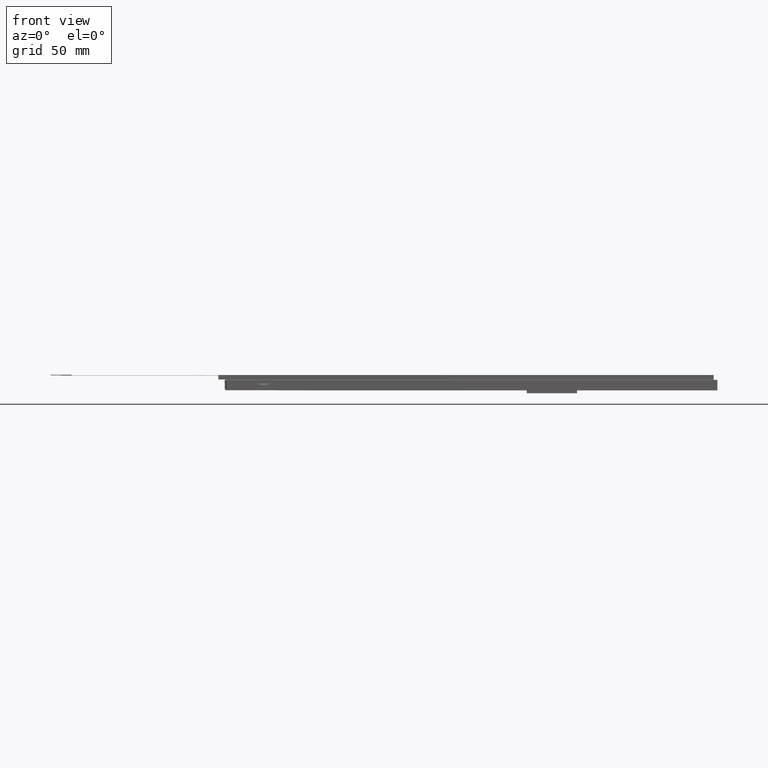
[diagram: clean part render]
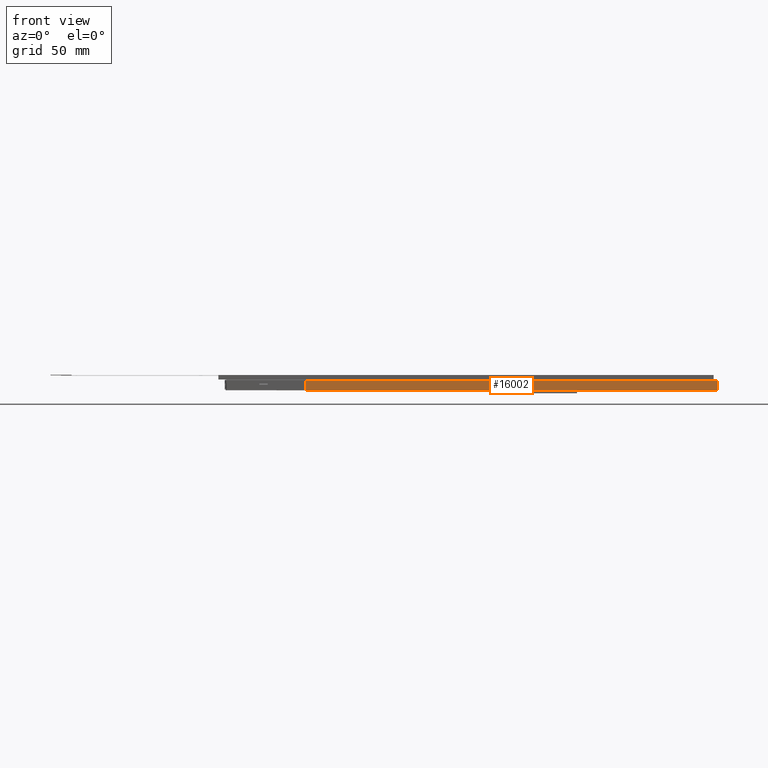
[diagram: same view with one face highlighted and labeled with its STEP entity id]
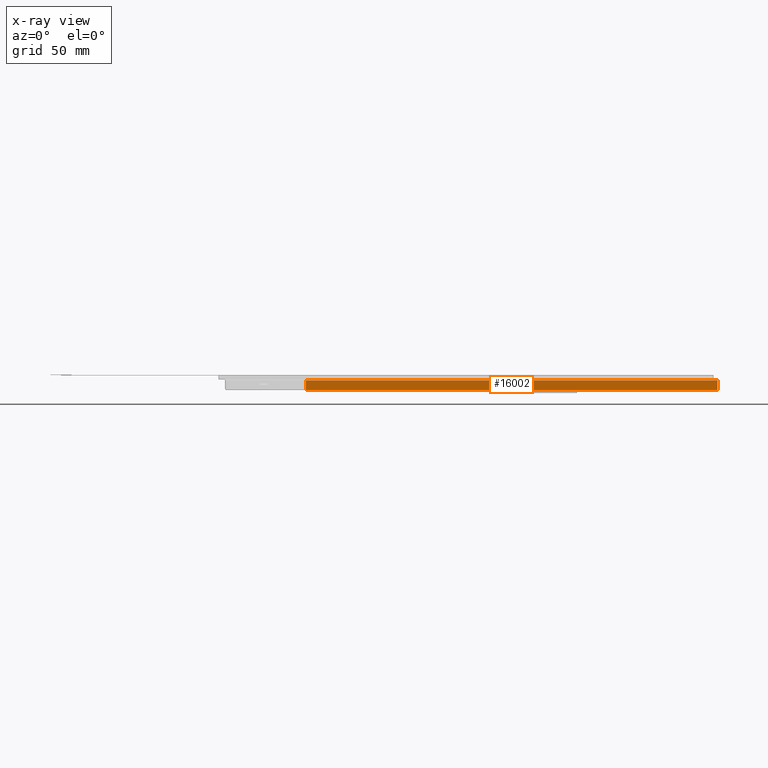
[diagram: x-ray of the same camera — body ghosted, the highlighted face saturated]
A machine part, front view. The second image highlights one B-rep face of the part: STEP entity #16002.
The next image is the same camera in x-ray: the body ghosted, the highlighted face saturated — about 0% of this face is hidden behind the body in this view.
In plain terms, the highlighted planar face has unit normal (0, -1, 0).
Its self-contained STEP definition (entity closure, byte-faithful):
#745=FACE_OUTER_BOUND('',#1635,.T.);
#1635=EDGE_LOOP('',(#11823,#11824,#11825,#11826));
#2906=LINE('',#23794,#5001);
#2914=LINE('',#23811,#5009);
#2918=LINE('',#23818,#5013);
#2923=LINE('',#23828,#5018);
#5001=VECTOR('',#19064,10.);
#5009=VECTOR('',#19078,10.);
#5013=VECTOR('',#19088,10.);
#5018=VECTOR('',#19095,10.);
#6966=VERTEX_POINT('',#23791);
#6967=VERTEX_POINT('',#23793);
#6972=VERTEX_POINT('',#23808);
#6973=VERTEX_POINT('',#23810);
#8752=EDGE_CURVE('',#6967,#6966,#2906,.T.);
#8762=EDGE_CURVE('',#6972,#6973,#2914,.T.);
#8766=EDGE_CURVE('',#6967,#6972,#2918,.T.);
#8771=EDGE_CURVE('',#6966,#6973,#2923,.T.);
#11823=ORIENTED_EDGE('',*,*,#8752,.T.);
#11824=ORIENTED_EDGE('',*,*,#8771,.T.);
#11825=ORIENTED_EDGE('',*,*,#8762,.F.);
#11826=ORIENTED_EDGE('',*,*,#8766,.F.);
#15229=PLANE('',#16977);
#16002=ADVANCED_FACE('',(#745),#15229,.T.);
#16977=AXIS2_PLACEMENT_3D('',#23827,#19093,#19094);
#19064=DIRECTION('',(-1.1102230246252E-16,0.,1.));
#19078=DIRECTION('',(-1.1102230246252E-16,0.,1.));
#19088=DIRECTION('',(-1.,0.,-1.1102230246252E-16));
#19093=DIRECTION('center_axis',(0.,-1.,0.));
#19094=DIRECTION('ref_axis',(-1.,0.,-1.1102230246252E-16));
#19095=DIRECTION('',(-1.,0.,-1.1102230246252E-16));
#23791=CARTESIAN_POINT('',(118.5,-71.4299999999931,-2.58));
#23793=CARTESIAN_POINT('',(118.5,-71.4299999999931,-7.33));
#23794=CARTESIAN_POINT('',(118.5,-71.4299999999931,-7.33));
#23808=CARTESIAN_POINT('',(-77.83,-71.4299999999931,-7.33000000000002));
#23810=CARTESIAN_POINT('',(-77.83,-71.4299999999931,-2.58000000000002));
#23811=CARTESIAN_POINT('',(-77.83,-71.4299999999931,-7.33000000000002));
#23818=CARTESIAN_POINT('',(118.5,-71.4299999999931,-7.33));
#23827=CARTESIAN_POINT('Origin',(118.5,-71.4299999999931,-4.955));
#23828=CARTESIAN_POINT('',(118.5,-71.4299999999931,-2.58));